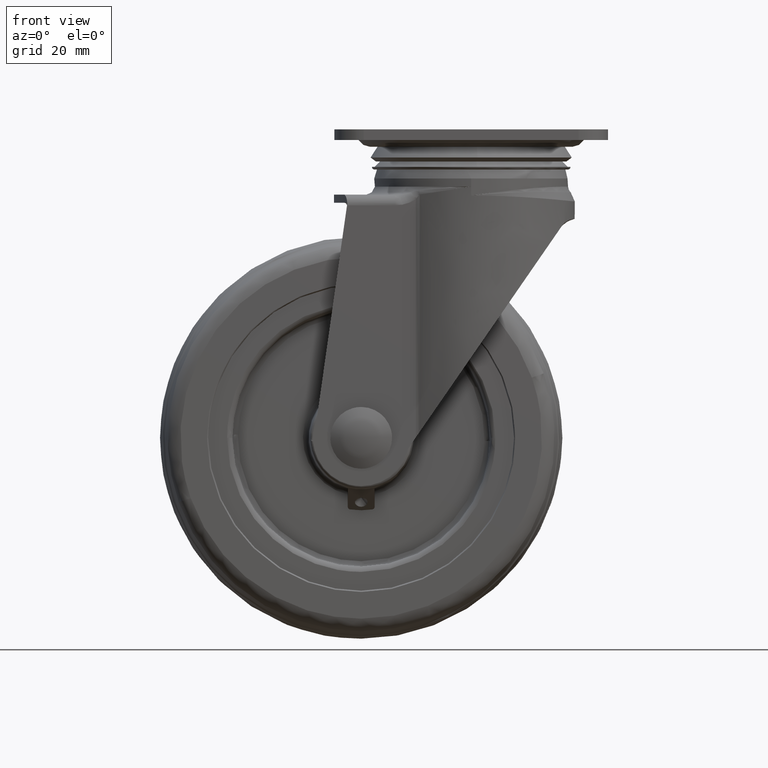
[diagram: clean part render]
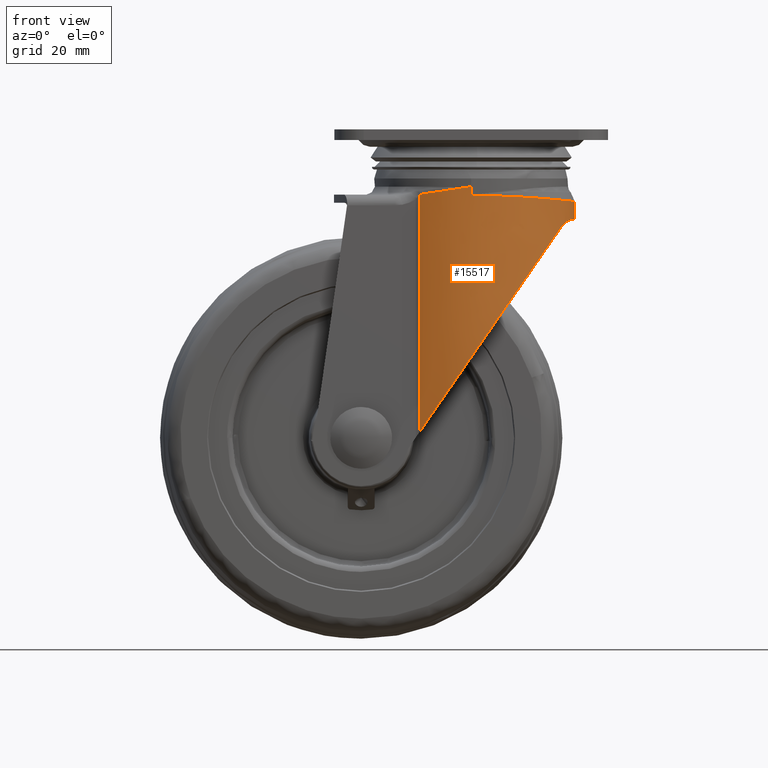
[diagram: same view with one face highlighted and labeled with its STEP entity id]
A machine part, front view. The second image highlights one B-rep face of the part: STEP entity #15517.
In plain terms, the highlighted face is a freeform B-spline surface patch.
Its self-contained STEP definition (entity closure, byte-faithful):
#13390=CARTESIAN_POINT('',(-1.106738E-014,-36.150002000000100,-21.350000000000001));
#13391=VERTEX_POINT('',#13390);
#13433=CARTESIAN_POINT('',(6.640428E-015,36.150002000000100,-21.350000000000001));
#13434=VERTEX_POINT('',#13433);
#13554=CARTESIAN_POINT('',(-19.232691642807449,31.356507151690799,-24.279203072881650));
#13555=VERTEX_POINT('',#13554);
#13556=CARTESIAN_POINT('',(-19.232691642807449,31.356507151690799,-24.279203072881650));
#13557=CARTESIAN_POINT('',(-17.747503634285980,32.153421143062552,-24.066550825624311));
#13558=CARTESIAN_POINT('',(-16.228834202940160,32.846211306190902,-23.844415787686870));
#13559=CARTESIAN_POINT('',(-13.128666982029110,34.036649935938698,-23.382904734809181));
#13560=CARTESIAN_POINT('',(-11.547148204668661,34.534235133781479,-23.143527240521959));
#13561=CARTESIAN_POINT('',(-9.128128553830011,35.136012353906040,-22.772919890695899));
#13562=CARTESIAN_POINT('',(-8.313972607085145,35.312428191093012,-22.647461780092119));
#13563=CARTESIAN_POINT('',(-7.286354155383120,35.502338356449172,-22.488389703732029));
#13564=CARTESIAN_POINT('',(-7.080333762983396,35.538788347483141,-22.456462836614769));
#13565=CARTESIAN_POINT('',(-6.667293597675121,35.608608171272650,-22.392388110262150));
#13566=CARTESIAN_POINT('',(-6.460147762606854,35.641996781400003,-22.360220646221631));
#13567=CARTESIAN_POINT('',(-5.838276095598564,35.737352745824033,-22.263559856570311));
#13568=CARTESIAN_POINT('',(-5.423207816194627,35.794507617604509,-22.198922580055520));
#13569=CARTESIAN_POINT('',(-4.176542118506059,35.946867218133953,-22.004489811231000));
#13570=CARTESIAN_POINT('',(-3.343485294808513,36.022987393892983,-21.874174644188631));
#13571=CARTESIAN_POINT('',(-2.090954100487368,36.099181743092167,-21.677930612796839));
#13572=CARTESIAN_POINT('',(-1.672951947645845,36.118243733869917,-21.612389604771561));
#13573=CARTESIAN_POINT('',(-1.045207844971632,36.137310493654198,-21.513897942865231));
#13574=CARTESIAN_POINT('',(-0.835835613589613,36.142078054883008,-21.481041789489488));
#13575=CARTESIAN_POINT('',(-0.521598068982956,36.146841691933211,-21.431670863174560));
#13576=CARTESIAN_POINT('',(-0.416820918842490,36.148031599925893,-21.415208605040839));
#13577=CARTESIAN_POINT('',(-0.259624990595461,36.149218611748452,-21.390399764747499));
#13578=CARTESIAN_POINT('',(-0.206910277896456,36.149514943459153,-21.381906662871469));
#13579=CARTESIAN_POINT('',(-0.103455457075203,36.149905385514643,-21.365953380476821));
#13580=CARTESIAN_POINT('',(-0.051727833136537,36.150001997463740,-21.357976706362930));
#13581=CARTESIAN_POINT('',(6.640428E-015,36.150002000000100,-21.350000000000001));
#13582=B_SPLINE_CURVE_WITH_KNOTS('',3,(#13556,#13557,#13558,#13559,#13560,#13561,#13562,#13563,#13564,#13565,#13566,#13567,#13568,#13569,#13570,#13571,#13572,#13573,#13574,#13575,#13576,#13577,#13578,#13579,#13580,#13581),.UNSPECIFIED.,.F.,.U.,(4,2,2,2,2,2,2,2,2,2,2,2,4),(0.0,0.250000000000000,0.500000000000000,0.625000000000000,0.656250000000000,0.687500000000000,0.750000000000000,0.875000000000000,0.937500000000000,0.968750000000000,0.984375000000000,0.992187500000000,1.0),.UNSPECIFIED.);
#13583=EDGE_CURVE('',#13555,#13434,#13582,.T.);
#13717=CARTESIAN_POINT('',(-2.280149E-014,-36.149999999999999,-24.685767574126551));
#13718=VERTEX_POINT('',#13717);
#14032=CARTESIAN_POINT('',(1.106738E-014,36.150000999999797,-24.685767574126551));
#14033=VERTEX_POINT('',#14032);
#14330=CARTESIAN_POINT('',(-1.106738E-014,-36.150002000000100,-21.350000000000001));
#14331=CARTESIAN_POINT('',(-2.280149E-014,-36.149999999999999,-24.685767574126551));
#14332=QUASI_UNIFORM_CURVE('',1,(#14330,#14331),.UNSPECIFIED.,.F.,.U.);
#14333=EDGE_CURVE('',#13391,#13718,#14332,.T.);
#14338=CARTESIAN_POINT('',(6.640428E-015,36.150002000000100,-21.350000000000001));
#14339=CARTESIAN_POINT('',(1.106738E-014,36.150000999999797,-24.685767574126551));
#14340=QUASI_UNIFORM_CURVE('',1,(#14338,#14339),.UNSPECIFIED.,.F.,.U.);
#14341=EDGE_CURVE('',#13434,#14033,#14340,.T.);
#14850=CARTESIAN_POINT('',(1.106738E-014,36.150000999999797,-24.685767574126551));
#14851=CARTESIAN_POINT('',(1.234874113071468,36.149999999999999,-24.685767574126551));
#14852=CARTESIAN_POINT('',(2.462777843553369,36.094775512288308,-24.692936584457250));
#14853=CARTESIAN_POINT('',(4.904924597958822,35.876067430827312,-24.721096135526871));
#14854=CARTESIAN_POINT('',(6.119167238310304,35.712580795445810,-24.742087049527019));
#14855=CARTESIAN_POINT('',(7.930217603254574,35.385552849062712,-24.783501583055010));
#14856=CARTESIAN_POINT('',(8.532179287959799,35.262887610663938,-24.798960554189449));
#14857=CARTESIAN_POINT('',(9.432504200458558,35.058116698441232,-24.824569932506691));
#14858=CARTESIAN_POINT('',(9.732176045718335,34.986396018307367,-24.833509839173342));
#14859=CARTESIAN_POINT('',(10.330638629663881,34.835959958386027,-24.852186009507300));
#14860=CARTESIAN_POINT('',(10.628638149782850,34.757440701787779,-24.861897866223948));
#14861=CARTESIAN_POINT('',(12.110826283721750,34.348914710321218,-24.912206829050699));
#14862=CARTESIAN_POINT('',(13.273412357899190,33.970786789079668,-24.958106506286938));
#14863=CARTESIAN_POINT('',(15.553175006523180,33.113792857073001,-25.059563162629129));
#14864=CARTESIAN_POINT('',(16.670350578607451,32.634924772174948,-25.115121684045960));
#14865=CARTESIAN_POINT('',(18.858954597467790,31.575510356860160,-25.234268858916000));
#14866=CARTESIAN_POINT('',(19.930387964579399,30.994975251216641,-25.297859215181880));
#14867=CARTESIAN_POINT('',(21.501998930667732,30.045018771617389,-25.398024348409319));
#14868=CARTESIAN_POINT('',(22.019935450143809,29.715150446621841,-25.432208937724280));
#14869=CARTESIAN_POINT('',(22.659721725092410,29.285792851941061,-25.475800578860301));
#14870=CARTESIAN_POINT('',(22.787266993886501,29.199087858539091,-25.484560007276482));
#14871=CARTESIAN_POINT('',(23.040871514871551,29.024462178349431,-25.502111371862881));
#14872=CARTESIAN_POINT('',(23.419316974263712,28.760521350130571,-25.528505369545140));
#14873=CARTESIAN_POINT('',(23.791902215294119,28.490596291680848,-25.555080827784121));
#14874=CARTESIAN_POINT('',(25.020912861139241,27.577625256489341,-25.643984319284950));
#14875=CARTESIAN_POINT('',(25.962806003315169,26.805036727287579,-25.716122499277091));
#14876=CARTESIAN_POINT('',(27.764558985950028,25.175873900652270,-25.860344525338402));
#14877=CARTESIAN_POINT('',(28.624421931214069,24.319303057690451,-25.932431678109971));
#14878=CARTESIAN_POINT('',(30.260317693417178,22.520167042055292,-26.074525645223069));
#14879=CARTESIAN_POINT('',(31.036366430333409,21.577618487556059,-26.144536296243238));
#14880=CARTESIAN_POINT('',(31.951251760958591,20.342730135319272,-26.229450544726632));
#14881=CARTESIAN_POINT('',(32.131554101042141,20.092779406143201,-26.246311753030170));
#14882=CARTESIAN_POINT('',(32.486142022874070,19.587633533111241,-26.279703470660419));
#14883=CARTESIAN_POINT('',(32.659780362569983,19.333367551523999,-26.296172843754860));
#14884=CARTESIAN_POINT('',(33.169818982503678,18.565530418837099,-26.344864997847580));
#14885=CARTESIAN_POINT('',(33.495349779900472,18.046923255391210,-26.376371645967360));
#14886=CARTESIAN_POINT('',(34.428924482042831,16.471156395398999,-26.467742982639908));
#14887=CARTESIAN_POINT('',(34.994057170113408,15.394100333202900,-26.524459018911831));
#14888=CARTESIAN_POINT('',(36.009704097178911,13.186775963897700,-26.628015478558911));
#14889=CARTESIAN_POINT('',(36.460227654372829,12.056512111794250,-26.674859490351700));
#14890=CARTESIAN_POINT('',(37.047320078230122,10.319898505992910,-26.736584030447741));
#14891=CARTESIAN_POINT('',(37.228207122510881,9.734144620788667,-26.755734654662810));
#14892=CARTESIAN_POINT('',(37.476699807195423,8.844896324963962,-26.782172023056692));
#14893=CARTESIAN_POINT('',(37.555734086259967,8.546662636637004,-26.790604221684230));
#14894=CARTESIAN_POINT('',(37.706007885167537,7.946783569437868,-26.806673853136630));
#14895=CARTESIAN_POINT('',(37.776904719467268,7.646511182013226,-26.814274605732411));
#14896=CARTESIAN_POINT('',(38.110405747502270,6.143501772765204,-26.850100185402400));
#14897=CARTESIAN_POINT('',(38.310225610647812,4.935835175241015,-26.871793044912891));
#14898=CARTESIAN_POINT('',(38.578740703142593,2.510202133613311,-26.901004320257620));
#14899=CARTESIAN_POINT('',(38.647431842243378,1.292235379038762,-26.908523584841301));
#14900=CARTESIAN_POINT('',(38.651179762276243,-0.542515035327233,-26.908933051287072));
#14901=CARTESIAN_POINT('',(38.635849591637012,-1.155400993616819,-26.907257261208581));
#14902=CARTESIAN_POINT('',(38.587572640893413,-2.076715999632552,-26.901987955685641));
#14903=CARTESIAN_POINT('',(38.567264585142759,-2.384152178368307,-26.899772195702681));
#14904=CARTESIAN_POINT('',(38.518121677932783,-2.999694347987796,-26.894415129057329));
#14905=CARTESIAN_POINT('',(38.489248236005288,-3.308039396205577,-26.891269631551140));
#14906=CARTESIAN_POINT('',(38.324417377615760,-4.842068805571457,-26.873333583139889));
#14907=CARTESIAN_POINT('',(38.126794935545050,-6.051772546940817,-26.851874621643869));
#14908=CARTESIAN_POINT('',(37.605037328115152,-8.437487872264057,-26.795799418931502));
#14909=CARTESIAN_POINT('',(37.280886966655231,-9.613495377630139,-26.761180459988580));
#14910=CARTESIAN_POINT('',(36.700468426417572,-11.352439619994749,-26.700100490605539));
#14911=CARTESIAN_POINT('',(36.491266704710938,-11.927901935948460,-26.678214698623901));
#14912=CARTESIAN_POINT('',(36.153687966911889,-12.784771034806580,-26.643184876820410));
#14913=CARTESIAN_POINT('',(35.978951704394532,-13.211623738274991,-26.625119676077659));
#14914=CARTESIAN_POINT('',(35.795234394012887,-13.636088139812390,-26.606245521215520));
#14915=CARTESIAN_POINT('',(35.670751768443829,-13.918531451706230,-26.593484828934422));
#14916=CARTESIAN_POINT('',(35.607470088400099,-14.059567874387961,-26.587011633124259));
#14917=CARTESIAN_POINT('',(35.030445527998488,-15.323091063257310,-26.528120671428240));
#14918=CARTESIAN_POINT('',(34.462477497800393,-16.409675597601240,-26.471082343743468));
#14919=CARTESIAN_POINT('',(33.221720560293200,-18.513355479391571,-26.349538504067532));
#14920=CARTESIAN_POINT('',(32.548913283635272,-19.530438464047471,-26.285028712270819));
#14921=CARTESIAN_POINT('',(31.100329720675759,-21.496448866301009,-26.150374228335188));
#14922=CARTESIAN_POINT('',(30.324551793864799,-22.445374965121509,-26.080225708610399));
#14923=CARTESIAN_POINT('',(29.393191728717980,-23.474190955167199,-25.999196277845570));
#14924=CARTESIAN_POINT('',(29.288897934213480,-23.587954795862949,-25.990164400898522));
#14925=CARTESIAN_POINT('',(29.079234162869589,-23.813805942123619,-25.972094044590801));
#14926=CARTESIAN_POINT('',(28.762919207694910,-24.150295655862472,-25.944960726562179));
#14927=CARTESIAN_POINT('',(28.441189822857240,-24.479980676180180,-25.917762811001399));
#14928=CARTESIAN_POINT('',(27.790612717226409,-25.130409085759460,-25.863330166035158));
#14929=CARTESIAN_POINT('',(27.347408265328390,-25.552111806282699,-25.826992783518371));
#14930=CARTESIAN_POINT('',(25.989962262934998,-26.782294102571861,-25.718221659464771));
#14931=CARTESIAN_POINT('',(25.047954613845910,-27.555931340833681,-25.646028576898829));
#14932=CARTESIAN_POINT('',(23.091473838274769,-29.012464040458362,-25.504328338841020));
#14933=CARTESIAN_POINT('',(22.076997695512890,-29.695355440857799,-25.434818246231639));
#14934=CARTESIAN_POINT('',(20.763302940457439,-30.491989805063739,-25.350911628955728));
#14935=CARTESIAN_POINT('',(20.498278907554791,-30.648461297503609,-25.334279587545389));
#14936=CARTESIAN_POINT('',(20.097294004459080,-30.878861164720050,-25.309580766229590));
#14937=CARTESIAN_POINT('',(19.963040138388848,-30.954951288258481,-25.301388438521030));
#14938=CARTESIAN_POINT('',(19.694052000823941,-31.105320148472650,-25.285131394700120));
#14939=CARTESIAN_POINT('',(19.019967343146831,-31.476951389133902,-25.244782157274720));
#14940=CARTESIAN_POINT('',(18.337875707212120,-31.827305654584549,-25.205938537559302));
#14941=CARTESIAN_POINT('',(16.685833837610279,-32.628279318989499,-25.115892599681139));
#14942=CARTESIAN_POINT('',(15.564477835481270,-33.109185592226837,-25.060101632470811));
#14943=CARTESIAN_POINT('',(13.282751215227000,-33.967631334707292,-24.958486976175362));
#14944=CARTESIAN_POINT('',(12.122378350298961,-34.345164631943263,-24.912661981478490));
#14945=CARTESIAN_POINT('',(10.352471689553420,-34.833835515141452,-24.852493291692419));
#14946=CARTESIAN_POINT('',(9.757603351858410,-34.983765588466341,-24.833865100199070));
#14947=CARTESIAN_POINT('',(8.857865503921156,-35.189005519711714,-24.808202127432651));
#14948=CARTESIAN_POINT('',(8.556713127570834,-35.254141529806617,-24.800027697775850));
#14949=CARTESIAN_POINT('',(7.951907857655748,-35.377805381876740,-24.784461664326159));
#14950=CARTESIAN_POINT('',(7.648839635568202,-35.436210099132673,-24.777085556875349));
#14951=CARTESIAN_POINT('',(6.132459670707151,-35.710766154841536,-24.742320072085271));
#14952=CARTESIAN_POINT('',(3.695021970302492,-36.039450884906280,-24.700118966377879));
#14953=CARTESIAN_POINT('',(1.235419329549743,-36.150000000000013,-24.685767574126540));
#14954=CARTESIAN_POINT('',(1.152661E-014,-36.149999999999999,-24.685767574126551));
#14955=B_SPLINE_CURVE_WITH_KNOTS('',3,(#14850,#14851,#14852,#14853,#14854,#14855,#14856,#14857,#14858,#14859,#14860,#14861,#14862,#14863,#14864,#14865,#14866,#14867,#14868,#14869,#14870,#14871,#14872,#14873,#14874,#14875,#14876,#14877,#14878,#14879,#14880,#14881,#14882,#14883,#14884,#14885,#14886,#14887,#14888,#14889,#14890,#14891,#14892,#14893,#14894,#14895,#14896,#14897,#14898,#14899,#14900,#14901,#14902,#14903,#14904,#14905,#14906,#14907,#14908,#14909,#14910,#14911,#14912,#14913,#14914,#14915,#14916,#14917,#14918,#14919,#14920,#14921,#14922,#14923,#14924,#14925,#14926,#14927,#14928,#14929,#14930,#14931,#14932,#14933,#14934,#14935,#14936,#14937,#14938,#14939,#14940,#14941,#14942,#14943,#14944,#14945,#14946,#14947,#14948,#14949,#14950,#14951,#14952,#14953,#14954),.UNSPECIFIED.,.F.,.U.,(4,2,2,2,2,2,2,2,2,2,2,1,2,2,2,2,2,2,2,2,2,2,2,2,2,2,2,2,2,2,2,2,1,2,2,2,2,2,2,1,2,2,2,2,2,2,1,2,2,2,2,2,2,1,4),(0.0,0.031250000000000,0.062499999999999,0.078124999999999,0.085937499999999,0.093749999999999,0.124999999999999,0.156249999999999,0.187499999999999,0.203124999999999,0.207031249999999,0.210937499999999,0.218749999999998,0.249999999999998,0.281249999999998,0.312499999999998,0.320312499999998,0.328124999999998,0.343749999999998,0.374999999999998,0.406249999999999,0.421874999999999,0.429687499999999,0.437499999999999,0.468749999999999,0.499999999999999,0.515624999999999,0.523437499999999,0.531249999999999,0.562500000000000,0.593750000000000,0.609375000000000,0.617187500000000,0.621093750000000,0.625000000000000,0.656250000000000,0.687500000000000,0.718750000000000,0.722656250000000,0.726562500000000,0.734375000000000,0.750000000000000,0.781250000000000,0.812500000000000,0.820312500000000,0.824218750000000,0.828125000000000,0.843750000000000,0.875000000000001,0.906250000000001,0.921875000000001,0.929687500000000,0.937500000000000,0.968750000000000,1.0),.UNSPECIFIED.);
#14956=EDGE_CURVE('',#14033,#13718,#14955,.T.);
#15223=CARTESIAN_POINT('',(-22.459847241200180,29.419811203246368,-114.374970883695210));
#15224=CARTESIAN_POINT('',(-12.382580685685857,36.150000000000006,-114.374970883695160));
#15225=CARTESIAN_POINT('',(-2.366552E-015,36.149999999999999,-114.374970883695200));
#15226=CARTESIAN_POINT('',(38.650000999999961,36.150000000000006,-114.374970883695200));
#15227=CARTESIAN_POINT('',(38.650000999999953,4.426952E-015,-114.374970883695200));
#15228=CARTESIAN_POINT('',(38.650000999999961,-36.150000000000006,-114.374970883695200));
#15229=CARTESIAN_POINT('',(7.099656E-015,-36.149999999999999,-114.374970883695200));
#15230=CARTESIAN_POINT('',(-12.382580685685845,-36.149999999999999,-114.374970883695250));
#15231=CARTESIAN_POINT('',(-22.459847241200166,-29.419811203246365,-114.374970883695200));
#15232=CARTESIAN_POINT('',(-22.459847241200180,29.419811203246368,-19.795010319544904));
#15233=CARTESIAN_POINT('',(-12.382580685685857,36.150000000000006,-19.795010319544907));
#15234=CARTESIAN_POINT('',(-2.366552E-015,36.149999999999999,-19.795010319544911));
#15235=CARTESIAN_POINT('',(38.650000999999961,36.150000000000006,-19.795010319544915));
#15236=CARTESIAN_POINT('',(38.650000999999953,4.426952E-015,-19.795010319544911));
#15237=CARTESIAN_POINT('',(38.650000999999961,-36.150000000000006,-19.795010319544915));
#15238=CARTESIAN_POINT('',(7.099656E-015,-36.149999999999999,-19.795010319544911));
#15239=CARTESIAN_POINT('',(-12.382580685685845,-36.149999999999999,-19.795010319544904));
#15240=CARTESIAN_POINT('',(-22.459847241200166,-29.419811203246365,-19.795010319544904));
#15248=(BOUNDED_SURFACE()B_SPLINE_SURFACE(2,1,((#15223,#15232),(#15224,#15233),(#15225,#15234),(#15226,#15235),(#15227,#15236),(#15228,#15237),(#15229,#15238),(#15230,#15239),(#15231,#15240)),.UNSPECIFIED.,.F.,.F.,.U.)B_SPLINE_SURFACE_WITH_KNOTS((3,2,2,2,3),(2,2),(0.0,24.896852914667988,87.138985201337945,149.381117488007900,174.277970402675890),(0.0,94.579960564150312),.UNSPECIFIED.)GEOMETRIC_REPRESENTATION_ITEM()RATIONAL_B_SPLINE_SURFACE(((0.859411254969543,0.859411254969543),(0.882842712474619,0.882842712474619),(1.0,1.0),(0.707106781186548,0.707106781186548),(1.0,1.0),(0.707106781186548,0.707106781186548),(1.0,1.0),(0.882842712474619,0.882842712474619),(0.859411254969543,0.859411254969543)))REPRESENTATION_ITEM('')SURFACE());
#15249=CARTESIAN_POINT('',(-19.232691642807449,31.356507151690799,-112.819981203239610));
#15250=VERTEX_POINT('',#15249);
#15251=CARTESIAN_POINT('',(-19.232691642807449,31.356507151690799,-112.819981203239610));
#15252=CARTESIAN_POINT('',(-19.232691642807449,31.356507151690799,-24.279203072881650));
#15253=QUASI_UNIFORM_CURVE('',1,(#15251,#15252),.UNSPECIFIED.,.F.,.U.);
#15254=EDGE_CURVE('',#15250,#13555,#15253,.T.);
#15255=ORIENTED_EDGE('',*,*,#15254,.T.);
#15256=ORIENTED_EDGE('',*,*,#13583,.T.);
#15257=ORIENTED_EDGE('',*,*,#14341,.T.);
#15258=ORIENTED_EDGE('',*,*,#14956,.T.);
#15259=ORIENTED_EDGE('',*,*,#14333,.F.);
#15260=CARTESIAN_POINT('',(-19.232691642807751,-31.356507151690650,-24.279203072881749));
#15261=VERTEX_POINT('',#15260);
#15262=CARTESIAN_POINT('',(-1.106738E-014,-36.150002000000100,-21.350000000000001));
#15263=CARTESIAN_POINT('',(-0.052287506388331,-36.150001997436298,-21.358063010950922));
#15264=CARTESIAN_POINT('',(-0.104574798980279,-36.149903261855968,-21.366125988943910));
#15265=CARTESIAN_POINT('',(-0.209148947911239,-36.149504325305863,-21.382251877679028));
#15266=CARTESIAN_POINT('',(-0.261598890962994,-36.149206155834513,-21.390711889643629));
#15267=CARTESIAN_POINT('',(-0.418778886535347,-36.148011775656443,-21.415516375670240));
#15268=CARTESIAN_POINT('',(-0.523545231856916,-36.146817038644308,-21.431976943897659));
#15269=CARTESIAN_POINT('',(-0.837750456857269,-36.142039162069644,-21.481342321932630));
#15270=CARTESIAN_POINT('',(-1.047101123178756,-36.137262437848761,-21.514195066015660));
#15271=CARTESIAN_POINT('',(-1.674780628797275,-36.118169163918367,-21.612676375860641));
#15272=CARTESIAN_POINT('',(-2.092739812885128,-36.099090796288998,-21.678210539648450));
#15273=CARTESIAN_POINT('',(-3.345142415333723,-36.022851112118083,-21.874433987385611));
#15274=CARTESIAN_POINT('',(-4.178113921128041,-35.946705766050187,-22.004735418692679));
#15275=CARTESIAN_POINT('',(-5.424652227056951,-35.794315727834352,-22.199147620171139));
#15276=CARTESIAN_POINT('',(-5.839678140069782,-35.737151931762021,-22.263778047882958));
#15277=CARTESIAN_POINT('',(-6.461486400935755,-35.641784397984402,-22.360428585102021));
#15278=CARTESIAN_POINT('',(-6.668609346159074,-35.608392518721907,-22.392592358911450));
#15279=CARTESIAN_POINT('',(-7.081604287636143,-35.538566776998692,-22.456659794437549));
#15280=CARTESIAN_POINT('',(-7.287602174132298,-35.502114151236171,-22.488583034010460));
#15281=CARTESIAN_POINT('',(-8.315108617427370,-35.312192408099101,-22.647637065040449));
#15282=CARTESIAN_POINT('',(-9.129176621387904,-35.135772404705769,-22.773081035122392));
#15283=CARTESIAN_POINT('',(-11.547937181797019,-34.533997268352863,-23.143646965983919));
#15284=CARTESIAN_POINT('',(-13.129289509801200,-34.036432785555270,-23.382998186448191));
#15285=CARTESIAN_POINT('',(-16.229136052405671,-32.846073496813133,-23.844459944622411));
#15286=CARTESIAN_POINT('',(-17.747651247481461,-32.153341937588152,-24.066571961182682));
#15287=CARTESIAN_POINT('',(-19.232691642807751,-31.356507151690650,-24.279203072881749));
#15288=B_SPLINE_CURVE_WITH_KNOTS('',3,(#15262,#15263,#15264,#15265,#15266,#15267,#15268,#15269,#15270,#15271,#15272,#15273,#15274,#15275,#15276,#15277,#15278,#15279,#15280,#15281,#15282,#15283,#15284,#15285,#15286,#15287),.UNSPECIFIED.,.F.,.U.,(4,2,2,2,2,2,2,2,2,2,2,2,4),(0.0,0.007812500000000,0.015625000000000,0.031250000000000,0.062500000000000,0.125000000000000,0.250000000000000,0.312500000000000,0.343750000000000,0.375000000000000,0.500000000000000,0.750000000000000,1.0),.UNSPECIFIED.);
#15289=EDGE_CURVE('',#13391,#15261,#15288,.T.);
#15290=ORIENTED_EDGE('',*,*,#15289,.T.);
#15291=CARTESIAN_POINT('',(-19.232691642807850,-31.356507151690600,-112.819981203240000));
#15292=VERTEX_POINT('',#15291);
#15293=CARTESIAN_POINT('',(-19.232691642807751,-31.356507151690650,-24.279203072881749));
#15294=CARTESIAN_POINT('',(-19.232691642807850,-31.356507151690600,-112.819981203240000));
#15295=QUASI_UNIFORM_CURVE('',1,(#15293,#15294),.UNSPECIFIED.,.F.,.U.);
#15296=EDGE_CURVE('',#15261,#15292,#15295,.T.);
#15297=ORIENTED_EDGE('',*,*,#15296,.T.);
#15298=CARTESIAN_POINT('',(33.876600715402397,-17.402890350441151,-35.934317488765643));
#15299=VERTEX_POINT('',#15298);
#15300=CARTESIAN_POINT('',(-19.232691642807779,-31.356507151690622,-112.819981203240100));
#15301=CARTESIAN_POINT('',(-18.119675210899949,-31.953723309250488,-111.208681121981900));
#15302=CARTESIAN_POINT('',(-16.998292785329291,-32.486795550895991,-109.585269695479890));
#15303=CARTESIAN_POINT('',(-14.740500064899070,-33.437718050656613,-106.316691182530700));
#15304=CARTESIAN_POINT('',(-13.604081945376061,-33.855508315353688,-104.671512768415100));
#15305=CARTESIAN_POINT('',(-11.888977353711180,-34.401861084165077,-102.188577127313290));
#15306=CARTESIAN_POINT('',(-11.315525412478070,-34.570557889594113,-101.358397865788110));
#15307=CARTESIAN_POINT('',(-10.452789255933840,-34.803988472244633,-100.109425434391700));
#15308=CARTESIAN_POINT('',(-10.164805907634650,-34.878519391108817,-99.692515513556074));
#15309=CARTESIAN_POINT('',(-9.588721558203226,-35.020940545439849,-98.858525347337846));
#15310=CARTESIAN_POINT('',(-9.300530137476441,-35.088855781970253,-98.441314202629968));
#15311=CARTESIAN_POINT('',(-7.858837441160322,-35.412190133836440,-96.354193570689603));
#15312=CARTESIAN_POINT('',(-6.703134451998628,-35.618995580029143,-94.681096690030969));
#15313=CARTESIAN_POINT('',(-4.387218217428377,-35.933020355637467,-91.328373486696236));
#15314=CARTESIAN_POINT('',(-3.227004433731536,-36.040227799687962,-89.648746384746786));
#15315=CARTESIAN_POINT('',(-1.773960532087854,-36.112928396515102,-87.545192753667891));
#15316=CARTESIAN_POINT('',(-1.483212646518357,-36.124397082686492,-87.124280646520660));
#15317=CARTESIAN_POINT('',(-0.901438661374916,-36.141191510854547,-86.282053665263305));
#15318=CARTESIAN_POINT('',(-0.610403458588527,-36.146515249609067,-85.860725612545380));
#15319=CARTESIAN_POINT('',(0.262181732366992,-36.153263008306652,-84.597494856211171));
#15320=CARTESIAN_POINT('',(0.843523500532765,-36.145479737275842,-83.755893590110645));
#15321=CARTESIAN_POINT('',(2.586406014448308,-36.085358177434557,-81.232744195557814));
#15322=CARTESIAN_POINT('',(3.746806349353094,-35.996324715029132,-79.552847025738728));
#15323=CARTESIAN_POINT('',(6.064520206436046,-35.718932946584061,-76.197521426592232));
#15324=CARTESIAN_POINT('',(7.221834082248225,-35.530586019479472,-74.522092485313351));
#15325=CARTESIAN_POINT('',(8.666469569832486,-35.230577411176782,-72.430711610960046));
#15326=CARTESIAN_POINT('',(8.955331193804129,-35.167329857993977,-72.012530221328547));
#15327=CARTESIAN_POINT('',(9.532161133274608,-35.034438931256638,-71.177460673659965));
#15328=CARTESIAN_POINT('',(9.820211925068866,-34.964779429257007,-70.760453115713034));
#15329=CARTESIAN_POINT('',(10.683260463892450,-34.746059055493546,-69.511028452366006));
#15330=CARTESIAN_POINT('',(11.257155086487050,-34.587262600793629,-68.680208326525431));
#15331=CARTESIAN_POINT('',(12.974310889927740,-34.070910976256442,-66.194303171581495));
#15332=CARTESIAN_POINT('',(14.113058219164730,-33.673518979929327,-64.545752789457211));
#15333=CARTESIAN_POINT('',(15.811458139222751,-32.991638016658662,-62.087000294215493));
#15334=CARTESIAN_POINT('',(16.375967948966519,-32.750016251433131,-61.269766445518442));
#15335=CARTESIAN_POINT('',(17.220176205352900,-32.365021678275752,-60.047616625337838));
#15336=CARTESIAN_POINT('',(17.501152604597578,-32.232927392652194,-59.640850577725629));
#15337=CARTESIAN_POINT('',(18.062228842013170,-31.961002764833179,-58.828587469093797));
#15338=CARTESIAN_POINT('',(18.342398176161279,-31.821134186489619,-58.422989799610178));
#15339=CARTESIAN_POINT('',(19.739002357983779,-31.102910146311920,-56.401143250769188));
#15340=CARTESIAN_POINT('',(20.844112991766561,-30.467548759747920,-54.801288295383372));
#15341=CARTESIAN_POINT('',(22.481257357216460,-29.412035990103121,-52.431214706659162));
#15342=CARTESIAN_POINT('',(23.023541900415118,-29.043070113266442,-51.646156100629952));
#15343=CARTESIAN_POINT('',(24.100720352696779,-28.268234613239581,-50.086738217898542));
#15344=CARTESIAN_POINT('',(24.635954279222350,-27.862064674946570,-49.311886702162582));
#15345=CARTESIAN_POINT('',(25.694604340502138,-27.012630676113911,-47.779292141235757));
#15346=CARTESIAN_POINT('',(26.218413626486772,-26.569117975696422,-47.020979935885720));
#15347=CARTESIAN_POINT('',(27.254041265527260,-25.641231729383762,-45.521714650036500));
#15348=CARTESIAN_POINT('',(27.765862477522251,-25.156867925738979,-44.780757430686513));
#15349=CARTESIAN_POINT('',(28.523677687700019,-24.396529938888051,-43.683677751777282));
#15350=CARTESIAN_POINT('',(28.774627575311179,-24.137443668685940,-43.320380712571513));
#15351=CARTESIAN_POINT('',(29.273028201704609,-23.607347270442780,-42.598852308511653));
#15352=CARTESIAN_POINT('',(29.520531626564409,-23.336262955134139,-42.240544670676719));
#15353=CARTESIAN_POINT('',(30.255120778152179,-22.506758100539098,-41.177089068663882));
#15354=CARTESIAN_POINT('',(30.735073884545329,-21.931333522498420,-40.482266910462918));
#15355=CARTESIAN_POINT('',(31.673274948456228,-20.730688108971570,-39.124044868830637));
#15356=CARTESIAN_POINT('',(32.131531957555509,-20.105488039751009,-38.460631881536912));
#15357=CARTESIAN_POINT('',(33.023469799681692,-18.798704892939188,-37.169384532176892));
#15358=CARTESIAN_POINT('',(33.457165992939203,-18.117157055004881,-36.541527933295157));
#15359=CARTESIAN_POINT('',(33.876600715402368,-17.402890350441162,-35.934317488765629));
#15360=B_SPLINE_CURVE_WITH_KNOTS('',3,(#15300,#15301,#15302,#15303,#15304,#15305,#15306,#15307,#15308,#15309,#15310,#15311,#15312,#15313,#15314,#15315,#15316,#15317,#15318,#15319,#15320,#15321,#15322,#15323,#15324,#15325,#15326,#15327,#15328,#15329,#15330,#15331,#15332,#15333,#15334,#15335,#15336,#15337,#15338,#15339,#15340,#15341,#15342,#15343,#15344,#15345,#15346,#15347,#15348,#15349,#15350,#15351,#15352,#15353,#15354,#15355,#15356,#15357,#15358,#15359),.UNSPECIFIED.,.F.,.U.,(4,2,2,2,2,2,2,2,2,2,2,2,2,2,2,2,2,2,2,2,2,2,2,2,2,2,2,2,2,4),(0.0,0.062500000000001,0.125000000000001,0.156250000000001,0.171875000000001,0.187500000000001,0.250000000000001,0.312500000000000,0.328125000000000,0.343750000000000,0.374999999999999,0.437499999999997,0.499999999999996,0.515624999999995,0.531249999999995,0.562499999999995,0.624999999999995,0.656249999999995,0.671874999999995,0.687499999999995,0.749999999999996,0.781249999999997,0.812499999999997,0.843749999999997,0.874999999999998,0.890624999999998,0.906249999999998,0.937499999999999,0.968749999999999,1.0),.UNSPECIFIED.);
#15361=EDGE_CURVE('',#15292,#15299,#15360,.T.);
#15362=ORIENTED_EDGE('',*,*,#15361,.T.);
#15363=CARTESIAN_POINT('',(33.884389512700352,-17.389620013056099,-35.923082845752397));
#15364=VERTEX_POINT('',#15363);
#15365=CARTESIAN_POINT('',(33.876600715402397,-17.402890350441151,-35.934317488765601));
#15366=CARTESIAN_POINT('',(33.879194301265230,-17.398473663104529,-35.930562786685996));
#15367=CARTESIAN_POINT('',(33.881790587849594,-17.394050188029681,-35.926817914921003));
#15368=CARTESIAN_POINT('',(33.884389512700103,-17.389620013056501,-35.923082845752653));
#15369=B_SPLINE_CURVE_WITH_KNOTS('',3,(#15365,#15366,#15367,#15368),.UNSPECIFIED.,.F.,.U.,(4,4),(2.860979E-017,0.000019052150043),.UNSPECIFIED.);
#15370=EDGE_CURVE('',#15299,#15364,#15369,.T.);
#15371=ORIENTED_EDGE('',*,*,#15370,.T.);
#15372=CARTESIAN_POINT('',(33.884389512699947,17.389620013056700,-35.923082845752852));
#15373=VERTEX_POINT('',#15372);
#15374=CARTESIAN_POINT('',(33.884389512699947,17.389620013056689,-35.923082845752852));
#15375=CARTESIAN_POINT('',(34.046138152429542,17.113900314761711,-35.690624274603167));
#15376=CARTESIAN_POINT('',(34.211410258029098,16.823585614562660,-35.487545900238338));
#15377=CARTESIAN_POINT('',(34.543161189599552,16.219709339167370,-35.123975635262653));
#15378=CARTESIAN_POINT('',(34.709695455994968,15.906072939728981,-34.963670088402189));
#15379=CARTESIAN_POINT('',(34.957666545369101,15.420562423668930,-34.748296952784337));
#15380=CARTESIAN_POINT('',(35.040029625541990,15.256202746203940,-34.680721477388452));
#15381=CARTESIAN_POINT('',(35.162857973898618,15.006098829902241,-34.585026618157492));
#15382=CARTESIAN_POINT('',(35.203694619089802,14.922107508029290,-34.554066813000503));
#15383=CARTESIAN_POINT('',(35.284734181795287,14.753712280811961,-34.494197105970812));
#15384=CARTESIAN_POINT('',(35.324982840481539,14.669216115864071,-34.465250772436939));
#15385=CARTESIAN_POINT('',(35.524826414917023,14.245288839659400,-34.325135080191082));
#15386=CARTESIAN_POINT('',(35.680210627490709,13.901532654237281,-34.227717053984072));
#15387=CARTESIAN_POINT('',(35.981080513669532,13.205714888624490,-34.055641133213228));
#15388=CARTESIAN_POINT('',(36.126570262125952,12.853648437977780,-33.981016458521438));
#15389=CARTESIAN_POINT('',(36.406959013632857,12.141853123470231,-33.849831370865118));
#15390=CARTESIAN_POINT('',(36.541860192215502,11.782121820938400,-33.793287863328800));
#15391=CARTESIAN_POINT('',(36.800501861542202,11.055479852366171,-33.694636867873371));
#15392=CARTESIAN_POINT('',(36.924243639932619,10.688567877655469,-33.652538693711101));
#15393=CARTESIAN_POINT('',(37.160070104464047,9.947939780594705,-33.579852070438328));
#15394=CARTESIAN_POINT('',(37.272267256348741,9.573740810411259,-33.549252128706932));
#15395=CARTESIAN_POINT('',(37.588375325168357,8.450133100130412,-33.471573872497288));
#15396=CARTESIAN_POINT('',(37.772737088702371,7.697079309974365,-33.438092427798168));
#15397=CARTESIAN_POINT('',(38.089320519654102,6.183431116389508,-33.391239188424599));
#15398=CARTESIAN_POINT('',(38.221542983819091,5.422835365282554,-33.377938187831610));
#15399=CARTESIAN_POINT('',(38.433911459848993,3.894330310077373,-33.360832868925293));
#15400=CARTESIAN_POINT('',(38.514058926472941,3.126420765303163,-33.357049912645877));
#15401=CARTESIAN_POINT('',(38.621758174937987,1.583346150133633,-33.352710936336990));
#15402=CARTESIAN_POINT('',(38.649312623689823,0.808181461601900,-33.352154073908281));
#15403=CARTESIAN_POINT('',(38.650157190757902,-0.165380726787599,-33.352131621366063));
#15404=CARTESIAN_POINT('',(38.648644482235092,-0.360323925108528,-33.352171128875490));
#15405=CARTESIAN_POINT('',(38.642230556685597,-0.750675468610531,-33.352346511021373));
#15406=CARTESIAN_POINT('',(38.637326974300443,-0.946049642840436,-33.352482462439497));
#15407=CARTESIAN_POINT('',(38.617566939863167,-1.531254340401141,-33.353071242351270));
#15408=CARTESIAN_POINT('',(38.597656179448173,-1.920700736176103,-33.353696735307160));
#15409=CARTESIAN_POINT('',(38.517832273045023,-3.086977499501185,-33.356870802280589));
#15410=CARTESIAN_POINT('',(38.437847772661037,-3.861748562442421,-33.360578569516669));
#15411=CARTESIAN_POINT('',(38.277827084998627,-5.019759392059644,-33.373374875646540));
#15412=CARTESIAN_POINT('',(38.217807765627377,-5.405071263116327,-33.378879999671319));
#15413=CARTESIAN_POINT('',(38.117728090899391,-5.981991134538247,-33.389927983956021));
#15414=CARTESIAN_POINT('',(38.082669685014459,-6.174238063919715,-33.394081239282798));
#15415=CARTESIAN_POINT('',(38.009354920286803,-6.557555505417904,-33.403486100243860));
#15416=CARTESIAN_POINT('',(37.971092420557461,-6.748674330835056,-33.408737981947219));
#15417=CARTESIAN_POINT('',(37.771827291070721,-7.701543988976687,-33.438221298586313));
#15418=CARTESIAN_POINT('',(37.586973951871542,-8.455144318430486,-33.471914514775719));
#15419=CARTESIAN_POINT('',(37.168103939592747,-9.943959796426402,-33.574852240234819));
#15420=CARTESIAN_POINT('',(36.934074953750333,-10.679184491860759,-33.643962336794722));
#15421=CARTESIAN_POINT('',(36.547432598236732,-11.766965138259220,-33.791030043421173));
#15422=CARTESIAN_POINT('',(36.412619567147452,-12.127043165931189,-33.847351127358877));
#15423=CARTESIAN_POINT('',(36.201693691870183,-12.663147955316379,-33.945789102718777));
#15424=CARTESIAN_POINT('',(36.129934343737062,-12.841180170144820,-33.980935651061202));
#15425=CARTESIAN_POINT('',(35.983551890400527,-13.195855965649031,-34.056517072211967));
#15426=CARTESIAN_POINT('',(35.908824793224447,-13.372738633637880,-34.097011163288542));
#15427=CARTESIAN_POINT('',(35.681161127094313,-13.899493017419109,-34.227085526073758));
#15428=CARTESIAN_POINT('',(35.525275378674870,-14.244268782090391,-34.324876024745983));
#15429=CARTESIAN_POINT('',(35.206926158832523,-14.919716409991560,-34.547968155461142));
#15430=CARTESIAN_POINT('',(35.044452855137642,-15.250400507251010,-34.673226673361462));
#15431=CARTESIAN_POINT('',(34.715075458846378,-15.895772654076531,-34.958698864808440));
#15432=CARTESIAN_POINT('',(34.548148844452179,-16.210489924706820,-35.118810752584423));
#15433=CARTESIAN_POINT('',(34.338662753884137,-16.591985145980772,-35.348016549675897));
#15434=CARTESIAN_POINT('',(34.296680272996902,-16.667768559585710,-35.395384134578158));
#15435=CARTESIAN_POINT('',(34.213095894122027,-16.817372529859480,-35.492849345580922));
#15436=CARTESIAN_POINT('',(34.171463369929981,-16.891250339318830,-35.542977032135383));
#15437=CARTESIAN_POINT('',(34.047185886977623,-17.109983387100549,-35.697831638472813));
#15438=CARTESIAN_POINT('',(33.965153861029407,-17.251947623405609,-35.807011606799193));
#15439=CARTESIAN_POINT('',(33.884389512700331,-17.389620013056089,-35.923082845752397));
#15440=B_SPLINE_CURVE_WITH_KNOTS('',3,(#15374,#15375,#15376,#15377,#15378,#15379,#15380,#15381,#15382,#15383,#15384,#15385,#15386,#15387,#15388,#15389,#15390,#15391,#15392,#15393,#15394,#15395,#15396,#15397,#15398,#15399,#15400,#15401,#15402,#15403,#15404,#15405,#15406,#15407,#15408,#15409,#15410,#15411,#15412,#15413,#15414,#15415,#15416,#15417,#15418,#15419,#15420,#15421,#15422,#15423,#15424,#15425,#15426,#15427,#15428,#15429,#15430,#15431,#15432,#15433,#15434,#15435,#15436,#15437,#15438,#15439),.UNSPECIFIED.,.F.,.U.,(4,2,2,2,2,2,2,2,2,2,2,2,2,2,2,2,2,2,2,2,2,2,2,2,2,2,2,2,2,2,2,2,4),(0.0,0.031249999999999,0.062499999999998,0.078124999999998,0.085937499999998,0.093749999999998,0.124999999999998,0.156249999999998,0.187499999999998,0.218749999999998,0.249999999999999,0.312499999999999,0.374999999999999,0.437499999999999,0.499999999999999,0.515624999999999,0.531249999999999,0.562499999999999,0.624999999999999,0.656250000000000,0.671875000000000,0.687500000000000,0.750000000000000,0.812500000000000,0.843750000000001,0.859375000000001,0.875000000000001,0.906250000000001,0.937500000000001,0.968750000000001,0.976562500000000,0.984375000000000,1.0),.UNSPECIFIED.);
#15441=EDGE_CURVE('',#15373,#15364,#15440,.T.);
#15442=ORIENTED_EDGE('',*,*,#15441,.F.);
#15443=CARTESIAN_POINT('',(33.876600715402397,17.402890350441101,-35.934317488765643));
#15444=VERTEX_POINT('',#15443);
#15445=CARTESIAN_POINT('',(33.884389512699947,17.389620013056700,-35.923082845752852));
#15446=CARTESIAN_POINT('',(33.881790587849437,17.394050188029819,-35.926817914921259));
#15447=CARTESIAN_POINT('',(33.879194301265173,17.398473663104578,-35.930562786686131));
#15448=CARTESIAN_POINT('',(33.876600715402397,17.402890350441101,-35.934317488765643));
#15449=B_SPLINE_CURVE_WITH_KNOTS('',3,(#15445,#15446,#15447,#15448),.UNSPECIFIED.,.F.,.U.,(4,4),(1.419084E-016,0.000019052150043),.UNSPECIFIED.);
#15450=EDGE_CURVE('',#15373,#15444,#15449,.T.);
#15451=ORIENTED_EDGE('',*,*,#15450,.T.);
#15452=CARTESIAN_POINT('',(33.876600715402397,17.402890350441140,-35.934317488765643));
#15453=CARTESIAN_POINT('',(33.457524143148952,18.116547151350400,-36.541009443679492));
#15454=CARTESIAN_POINT('',(33.023926981727612,18.798015270760789,-37.168722675400559));
#15455=CARTESIAN_POINT('',(32.131646101145478,20.105340596853289,-38.460466637277818));
#15456=CARTESIAN_POINT('',(31.672947491305042,20.731164794451640,-39.124518924486132));
#15457=CARTESIAN_POINT('',(30.968223931101669,21.632935163796319,-40.144738480341083));
#15458=CARTESIAN_POINT('',(30.730529847155751,21.927348878602110,-40.488845257022049));
#15459=CARTESIAN_POINT('',(30.249858089325439,22.504463850011589,-41.184707797993653));
#15460=CARTESIAN_POINT('',(30.006723906662870,22.787333139568570,-41.536690138100980));
#15461=CARTESIAN_POINT('',(29.271750172984468,23.617021400022288,-42.600702494835602));
#15462=CARTESIAN_POINT('',(28.773905663201919,24.145547963465820,-43.321425815776593));
#15463=CARTESIAN_POINT('',(27.764130118648779,25.158526717175960,-44.783265345137423));
#15464=CARTESIAN_POINT('',(27.252194792632771,25.642965480855661,-45.524387765939970));
#15465=CARTESIAN_POINT('',(26.215482686491729,26.571664252914012,-47.025223021357647));
#15466=CARTESIAN_POINT('',(25.690327343645311,27.016190973484459,-47.785483896528390));
#15467=CARTESIAN_POINT('',(24.101966330327031,28.290264383825861,-50.084934431539942));
#15468=CARTESIAN_POINT('',(23.024753535954488,29.061807083254280,-51.644402030890312));
#15469=CARTESIAN_POINT('',(21.658528478700202,29.942427357235140,-53.622269097953627));
#15470=CARTESIAN_POINT('',(21.384189444968261,30.114397817228660,-54.019426313851007));
#15471=CARTESIAN_POINT('',(20.834348333771050,30.449704873825372,-54.815424469630763));
#15472=CARTESIAN_POINT('',(20.558796044571309,30.613077672641190,-55.214338100418260));
#15473=CARTESIAN_POINT('',(19.730308542164892,31.090791390317978,-56.413729180081482));
#15474=CARTESIAN_POINT('',(19.175544669753741,31.392741017412931,-57.216853956202641));
#15475=CARTESIAN_POINT('',(17.504373223782672,32.251971061804007,-59.636188127283930));
#15476=CARTESIAN_POINT('',(16.381108141490081,32.762783886185197,-61.262325052567327));
#15477=CARTESIAN_POINT('',(14.683736125919980,33.444474615683042,-63.719589463233262));
#15478=CARTESIAN_POINT('',(14.115860312622161,33.657575601791692,-64.541696233519630));
#15479=CARTESIAN_POINT('',(13.261028236928530,33.956774212196159,-65.779226025120494));
#15480=CARTESIAN_POINT('',(12.975580864627741,34.053096320837923,-66.192464644962612));
#15481=CARTESIAN_POINT('',(12.403694412800970,34.239020568898077,-67.020377566894439));
#15482=CARTESIAN_POINT('',(12.117162482013020,34.328649528756571,-67.435186288604271));
#15483=CARTESIAN_POINT('',(10.683651099519070,34.759745784719343,-69.510462934015351));
#15484=CARTESIAN_POINT('',(9.533618610887849,35.050405628968953,-71.175350701399580));
#15485=CARTESIAN_POINT('',(7.227476269820770,35.529504313589293,-74.513924360357080));
#15486=CARTESIAN_POINT('',(6.071365166535428,35.717922114724509,-76.187612062769659));
#15487=CARTESIAN_POINT('',(4.332783469168962,35.926287988092810,-78.704535218556998));
#15488=CARTESIAN_POINT('',(3.752519141676888,35.983345371666388,-79.544576687160117));
#15489=CARTESIAN_POINT('',(2.881024388615340,36.050458729295421,-80.806228830082318));
#15490=CARTESIAN_POINT('',(2.590266761236110,36.069753354058882,-81.227155040326551));
#15491=CARTESIAN_POINT('',(2.008904217169933,36.102163124077833,-82.068786383440340));
#15492=CARTESIAN_POINT('',(1.718275261277070,36.115281987676603,-82.489526317570110));
#15493=CARTESIAN_POINT('',(0.265390927381017,36.165513157756450,-84.592848944400259));
#15494=CARTESIAN_POINT('',(-0.896084699715155,36.156629563458843,-86.274302801385574));
#15495=CARTESIAN_POINT('',(-3.217375742619176,36.040929928741562,-89.634807048069433));
#15496=CARTESIAN_POINT('',(-4.377191228130665,35.934117999996047,-91.313857538677013));
#15497=CARTESIAN_POINT('',(-5.825899430500098,35.738007768467313,-93.411134431701882));
#15498=CARTESIAN_POINT('',(-6.115587908323915,35.695649766876890,-93.830512847397955));
#15499=CARTESIAN_POINT('',(-6.694857516188090,35.604601538939782,-94.669114272735413));
#15500=CARTESIAN_POINT('',(-6.984505926538023,35.555898574712828,-95.088434683246476));
#15501=CARTESIAN_POINT('',(-7.852601690112121,35.400311649516652,-96.345166151252968));
#15502=CARTESIAN_POINT('',(-8.430284351428970,35.283948713820749,-97.181470173760246));
#15503=CARTESIAN_POINT('',(-10.160129525903180,34.896230126590858,-99.685745573734920));
#15504=CARTESIAN_POINT('',(-11.309097987673860,34.586350328133378,-101.349092962632700));
#15505=CARTESIAN_POINT('',(-13.025778071910031,34.039844730556013,-103.834309424785700));
#15506=CARTESIAN_POINT('',(-13.597131208714501,33.843934495079573,-104.661450273175600));
#15507=CARTESIAN_POINT('',(-14.735564531751210,33.424463441420869,-106.309546072418900));
#15508=CARTESIAN_POINT('',(-15.302771201160780,33.200877098696942,-107.130684131399210));
#15509=CARTESIAN_POINT('',(-16.998122653732370,32.486921577386752,-109.585023398077690));
#15510=CARTESIAN_POINT('',(-18.120024963894320,31.953535640736881,-111.209187455053000));
#15511=CARTESIAN_POINT('',(-19.232691642807470,31.356507151690799,-112.819981203239610));
#15512=B_SPLINE_CURVE_WITH_KNOTS('',3,(#15452,#15453,#15454,#15455,#15456,#15457,#15458,#15459,#15460,#15461,#15462,#15463,#15464,#15465,#15466,#15467,#15468,#15469,#15470,#15471,#15472,#15473,#15474,#15475,#15476,#15477,#15478,#15479,#15480,#15481,#15482,#15483,#15484,#15485,#15486,#15487,#15488,#15489,#15490,#15491,#15492,#15493,#15494,#15495,#15496,#15497,#15498,#15499,#15500,#15501,#15502,#15503,#15504,#15505,#15506,#15507,#15508,#15509,#15510,#15511),.UNSPECIFIED.,.F.,.U.,(4,2,2,2,2,2,2,2,2,2,2,2,2,2,2,2,2,2,2,2,2,2,2,2,2,2,2,2,2,4),(0.0,0.031250000000000,0.062500000000000,0.078125000000000,0.093750000000000,0.125000000000000,0.156250000000000,0.187500000000000,0.250000000000001,0.265625000000001,0.281250000000001,0.312500000000000,0.375000000000000,0.406250000000000,0.421875000000000,0.437500000000000,0.500000000000000,0.562499999999999,0.593749999999999,0.609374999999999,0.624999999999999,0.687499999999998,0.749999999999998,0.765624999999998,0.781249999999998,0.812499999999998,0.874999999999999,0.906249999999999,0.937499999999999,1.0),.UNSPECIFIED.);
#15513=EDGE_CURVE('',#15444,#15250,#15512,.T.);
#15514=ORIENTED_EDGE('',*,*,#15513,.T.);
#15515=EDGE_LOOP('',(#15255,#15256,#15257,#15258,#15259,#15290,#15297,#15362,#15371,#15442,#15451,#15514));
#15516=FACE_OUTER_BOUND('',#15515,.T.);
#15517=ADVANCED_FACE('',(#15516),#15248,.F.);